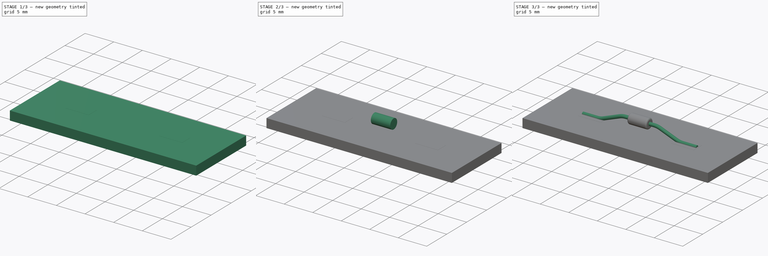
[diagram: build sequence overview — one tinted view per stage of 3, left to right]
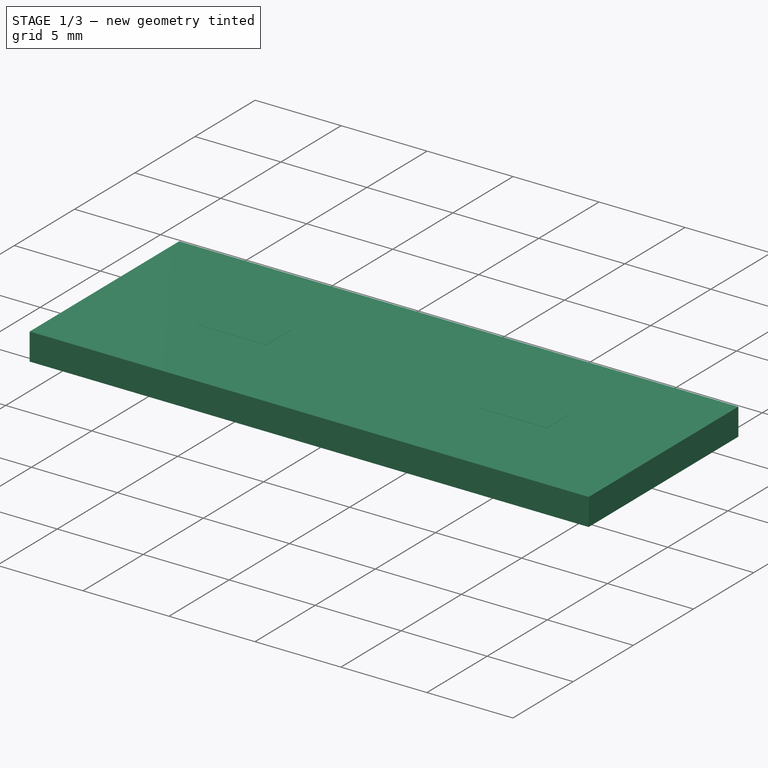
[diagram: stage 1 of 3 — iso view after this stage's code; geometry added in this stage tinted green]
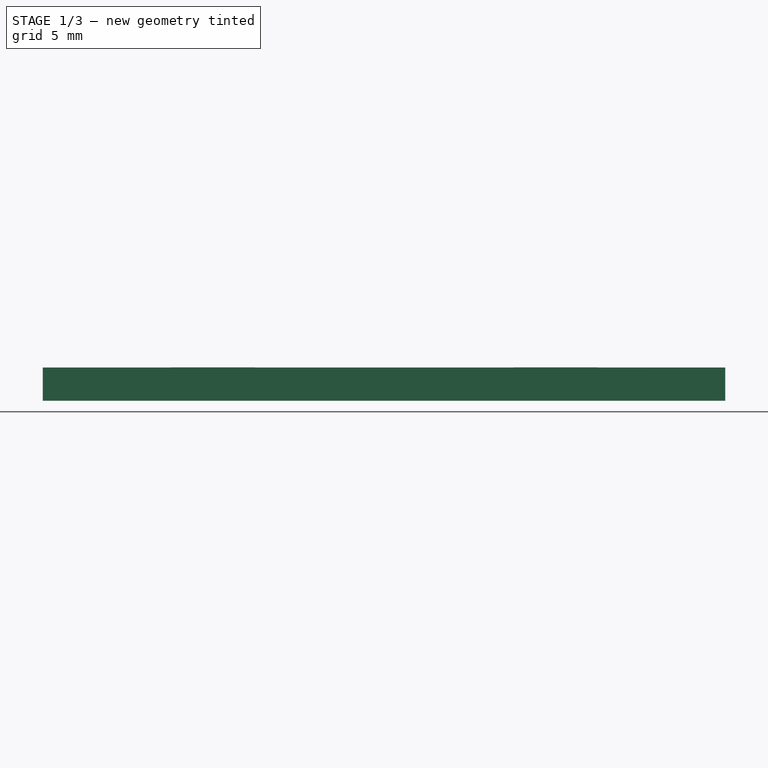
[diagram: stage 1 of 3 — front view after this stage's code; geometry added in this stage tinted green]
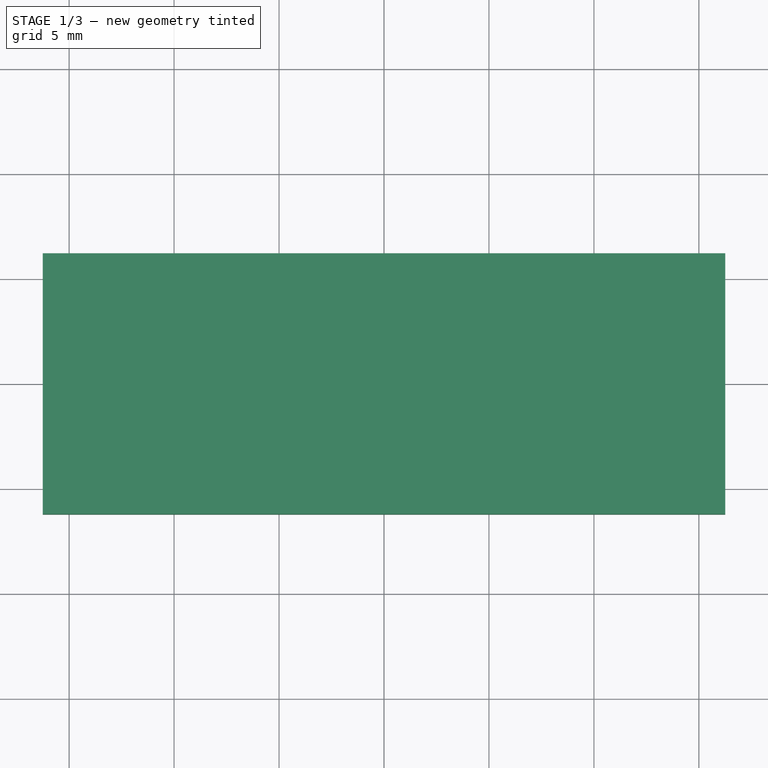
[diagram: stage 1 of 3 — top view after this stage's code; geometry added in this stage tinted green]
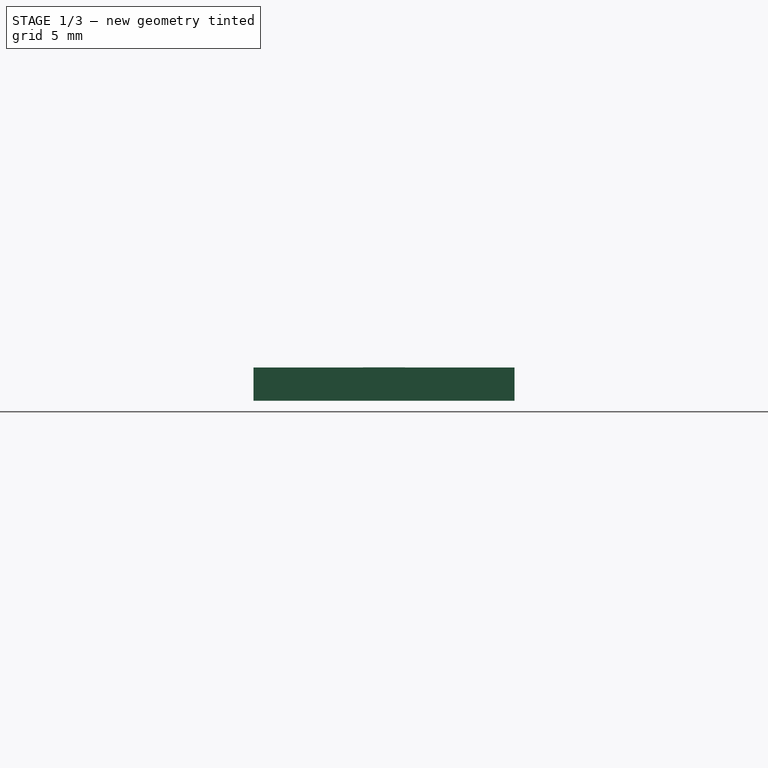
[diagram: stage 1 of 3 — right view after this stage's code; geometry added in this stage tinted green]
FCSTD DOCUMENT  (FreeCAD 0.17R10600 (Git))
Label: Diode_Helgoman
License: All rights reserved
LicenseURL: http://en.wikipedia.org/wiki/All_rights_reserved
objects: Sketcher::SketchObject×4, Part::Feature×4, Part::FeaturePython×3, PartDesign::Body×2, App::DocumentObjectGroup×2, Part::Sweep×1, PartDesign::Pad×1, PartDesign::Fillet×1
note: 17 computed .brp shape members not serialized (recipe doc carries the construction recipe); baked Part::Feature solids carry a one-line shape summary decoded from their .brp

FEATURE [PartDesign::Body] Body001
  Group = -> [Sketch003,Pad,Fillet]
  Origin = -> Body001Origin
  Tip = -> Fillet
FEATURE [Part::FeaturePython] Filk_lines  label="FrontSilk"  # a2plus imported part (geometry in sourceFile) (typed FeaturePython)
  fixedPosition = true
FEATURE [Part::FeaturePython] TopPads  # a2plus imported part (geometry in sourceFile) (typed FeaturePython)
  fixedPosition = true
FEATURE [Part::FeaturePython] newPCB  label="Pcb"  # a2plus imported part (geometry in sourceFile) (typed FeaturePython)
  fixedPosition = true
FEATURE [App::DocumentObjectGroup] DIODE_Helgoman_fp
  Group = -> [Filk_lines,TopPads,newPCB]
FEATURE [Part::Feature] FusionAxisZ1  label="Z"
  shape: bbox 0.8 x 0.8 x 14 mm, 8 faces (baked)
FEATURE [Part::Feature] FusionAxisY1  label="Y"
  Placement = pos=(0,0,0.05) rot=(-1,0,0;1.5708rad)
  shape: bbox 0.8 x 14 x 0.8 mm, 8 faces (baked)
FEATURE [Part::Feature] FusionAxisX1  label="X"
  Placement = pos=(0,-0.05,0) rot=(0,1,0;1.5708rad)
  shape: bbox 14 x 0.8 x 0.8 mm, 8 faces (baked)
FEATURE [App::DocumentObjectGroup] axis
  Group = -> [FusionAxisZ1,FusionAxisY1,FusionAxisX1]
FEATURE [Part::Feature] Shape  label="Diode_Helgoman"
  shape: bbox 20 x 1.894 x 2.804 mm, 17 faces (baked)
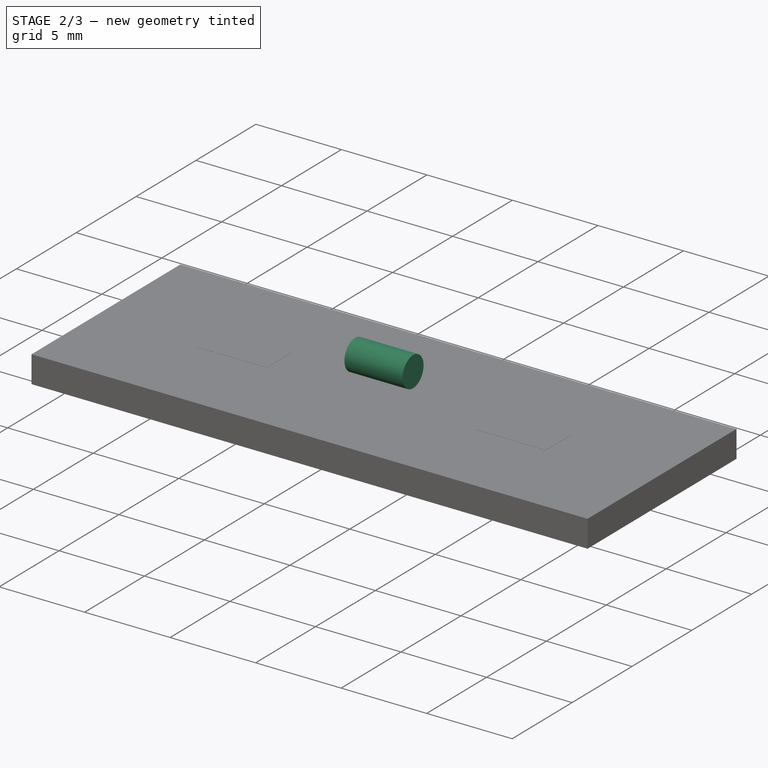
[diagram: stage 2 of 3 — iso view after this stage's code; geometry added in this stage tinted green]
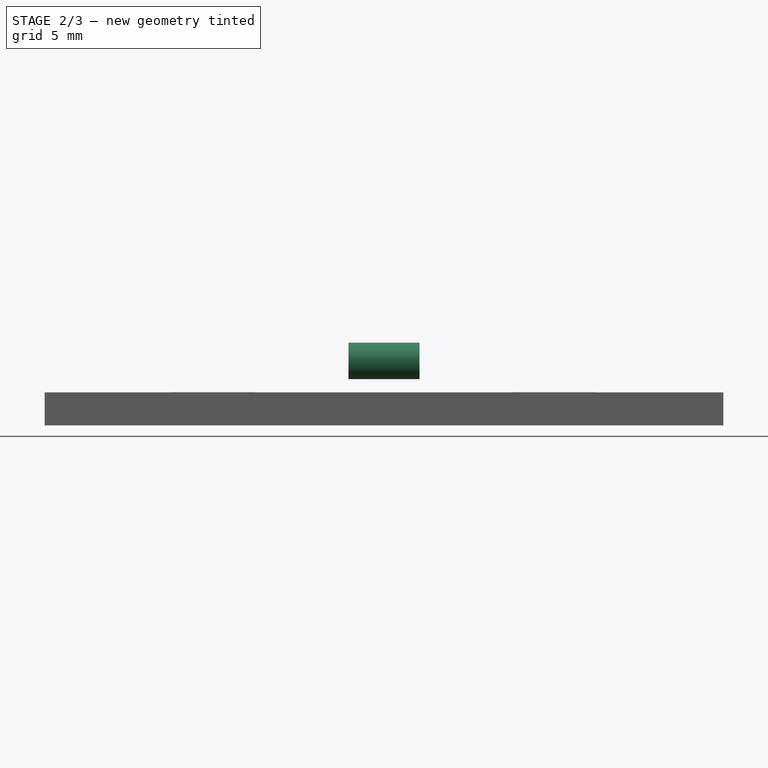
[diagram: stage 2 of 3 — front view after this stage's code; geometry added in this stage tinted green]
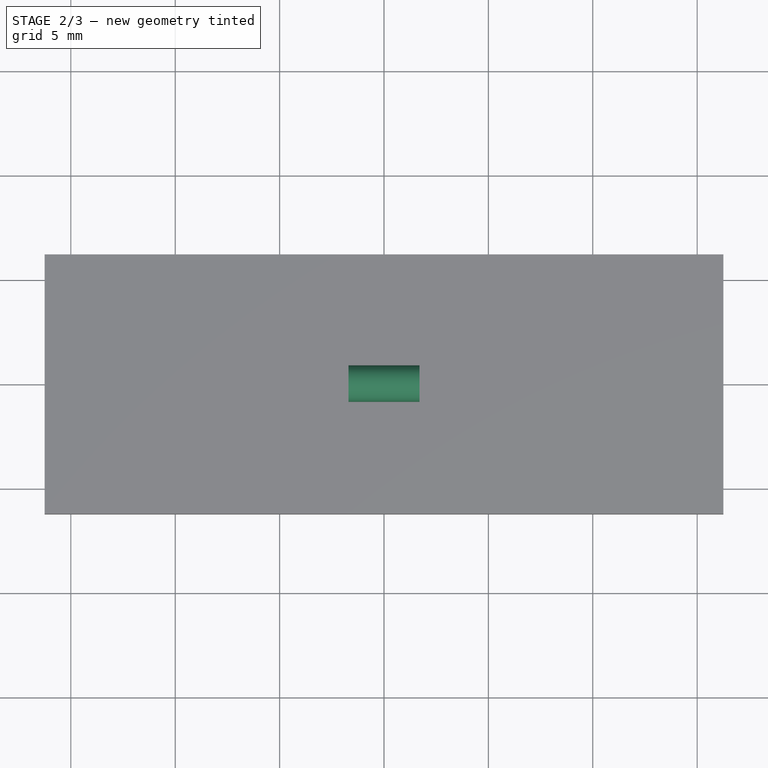
[diagram: stage 2 of 3 — top view after this stage's code; geometry added in this stage tinted green]
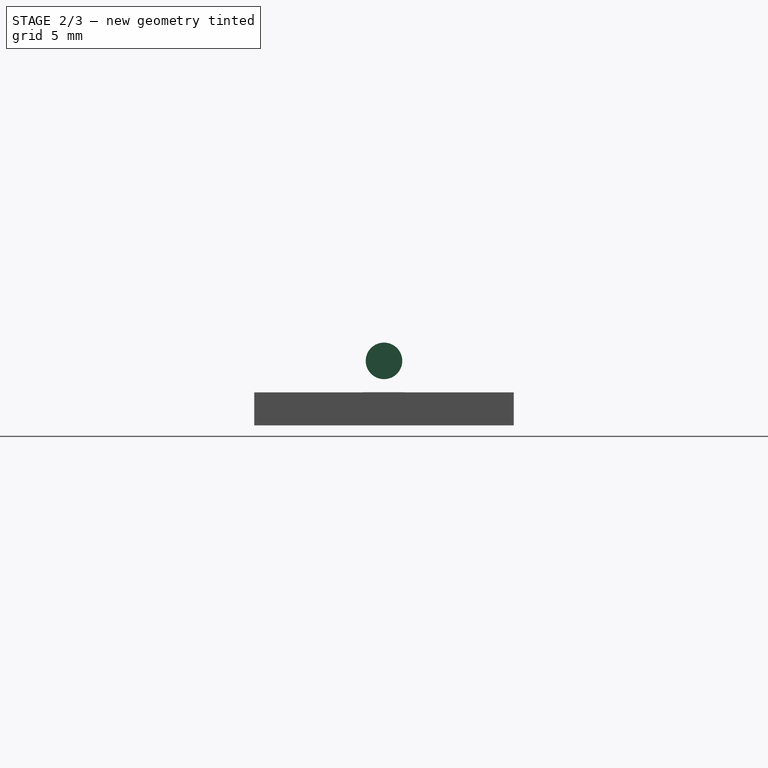
[diagram: stage 2 of 3 — right view after this stage's code; geometry added in this stage tinted green]
FEATURE [Sketcher::SketchObject] Sketch003
  ExternalGeometry = -> [Sketch]
  MapMode = 5
  Placement = pos=(0,0,0) rot=(0.57735,0.57735,0.57735;2.0944rad)
  Support = -> [YZ_Plane001]
  sketch-geometry (1):
    g0: Circle CenterX=0 CenterY=1.5 CenterZ=0 NormalX=0 NormalY=0 NormalZ=1 Radius=0.875
  constraints (2):
    c: Coincident(g0,g-3)
    c: Radius(g0) = 0.875
FEATURE [PartDesign::Pad] Pad
  Length = 3.4
  Length2 = 100
  Midplane = true
  Placement = pos=(0,0,0) rot=(0.57735,0.57735,0.57735;2.0944rad)
  Profile = -> Sketch003
  Type = 0
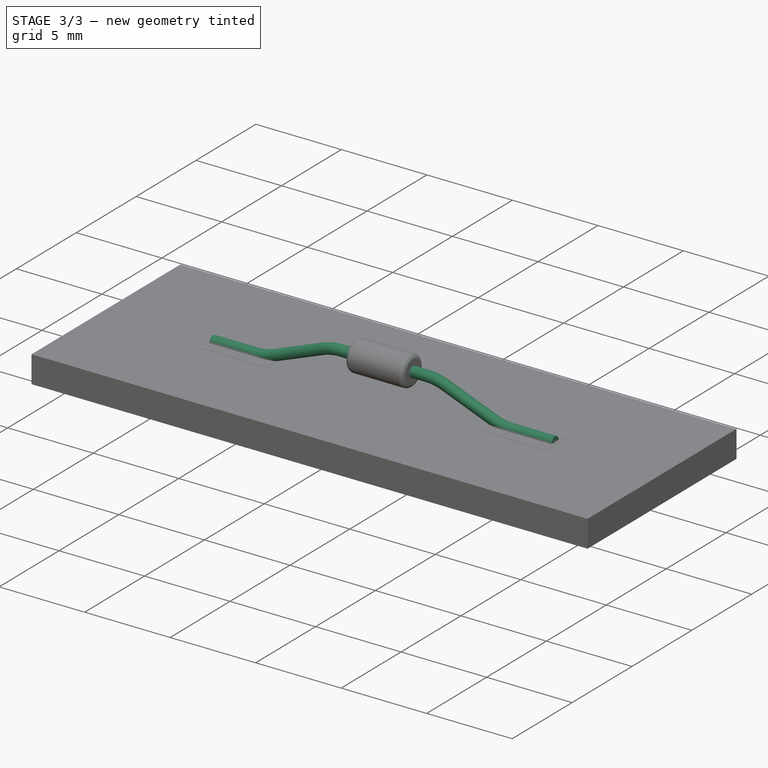
[diagram: stage 3 of 3 — iso view after this stage's code; geometry added in this stage tinted green]
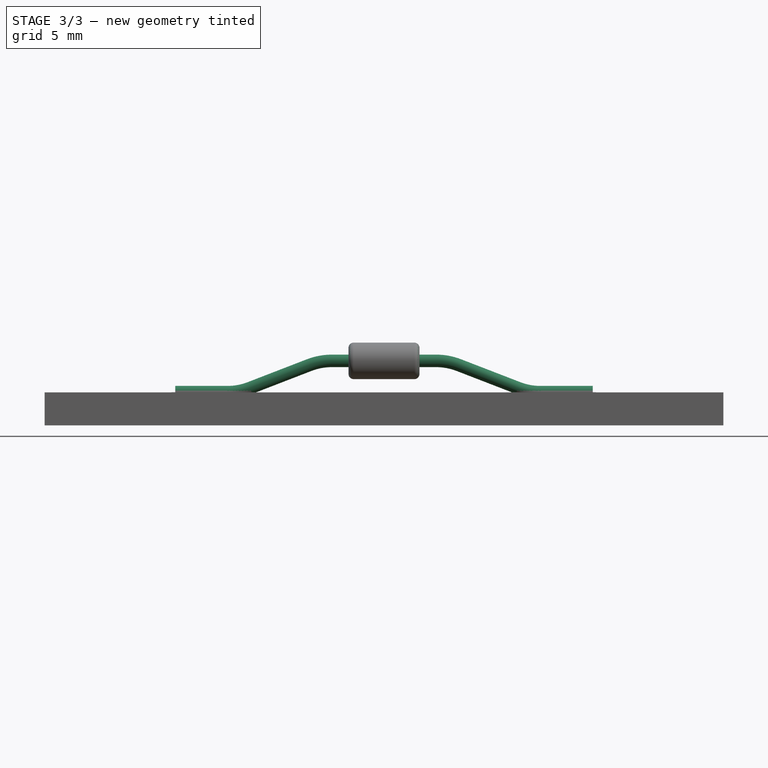
[diagram: stage 3 of 3 — front view after this stage's code; geometry added in this stage tinted green]
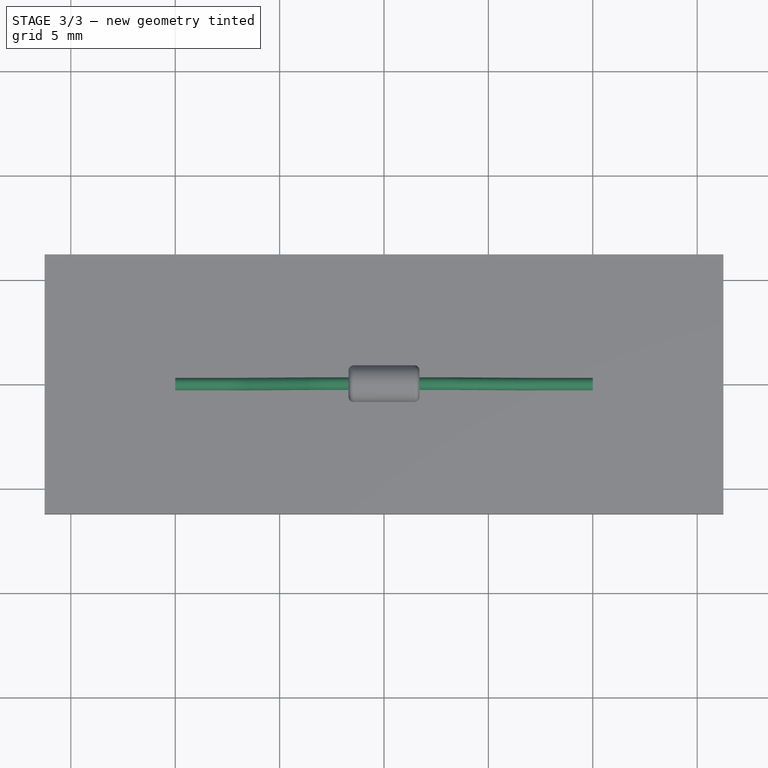
[diagram: stage 3 of 3 — top view after this stage's code; geometry added in this stage tinted green]
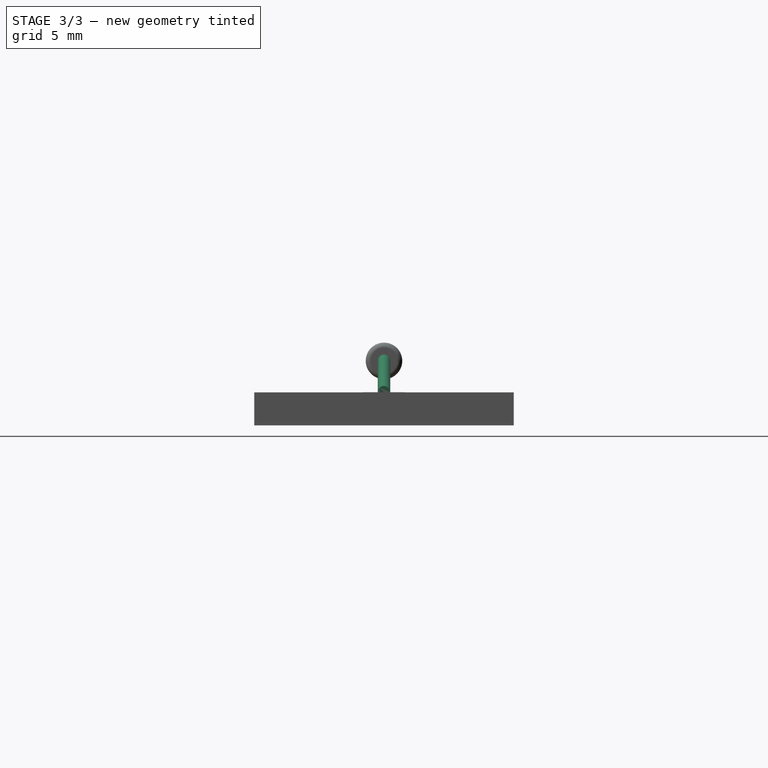
[diagram: stage 3 of 3 — right view after this stage's code; geometry added in this stage tinted green]
FEATURE [Sketcher::SketchObject] Sketch
  MapMode = 5
  Placement = pos=(0,0,0) rot=(1,0,0;1.5708rad)
  Support = -> [XZ_Plane]
  sketch-geometry (9):
    g0: LineSegment StartX=-10 StartY=0 StartZ=0 EndX=-7.5 EndY=0 EndZ=0
    g1: LineSegment StartX=-6.41842 StartY=0.201752 StartZ=0 EndX=-3.58159 EndY=1.29824 EndZ=0
    g2: LineSegment StartX=-2.5 StartY=1.5 StartZ=0 EndX=2.5 EndY=1.5 EndZ=0
    g3: ArcOfCircle CenterX=-2.5 CenterY=-1.5 CenterZ=0 NormalX=0 NormalY=0 NormalZ=1 Radius=3 StartAngle=1.5708 EndAngle=1.93963
    g4: ArcOfCircle CenterX=-7.5 CenterY=3 CenterZ=0 NormalX=0 NormalY=0 NormalZ=1 Radius=3 StartAngle=4.71239 EndAngle=5.08122
    g5: ArcOfCircle CenterX=2.5 CenterY=-1.5 CenterZ=0 NormalX=0 NormalY=0 NormalZ=1 Radius=3 StartAngle=1.20196 EndAngle=1.5708
    g6: LineSegment StartX=3.58158 StartY=1.29825 StartZ=0 EndX=6.41842 EndY=0.201752 EndZ=0
    g7: LineSegment StartX=7.5 StartY=0 StartZ=0 EndX=10 EndY=0 EndZ=0
    g8: ArcOfCircle CenterX=7.5 CenterY=3 CenterZ=0 NormalX=0 NormalY=0 NormalZ=1 Radius=3 StartAngle=4.34356 EndAngle=4.71239
  constraints (21):
    c: Horizontal(g2)
    c: Tangent(g2,g3) = 1.5708
    c: DistanceX(g-2,g3) = -2.5
    c: Tangent(g0,g4) = -1.5708
    c: Tangent(g1,g4) = -1.5708
    c: DistanceX(g-2,g4) = -7.5
    c: Tangent(g0,g-1)
    c: Tangent(g2,g5) = 1.5708
    c: Tangent(g5,g6) = 1.5708
    c: Horizontal(g7)
    c: Symmetric(g3,g5,g-2)
    c: DistanceY(g-1,g2) = 1.5
    c: Tangent(g6,g8) = -1.5708
    c: Tangent(g7,g8) = -1.5708
    c: Symmetric(g8,g4,g-2)
    c: DistanceX(g-2,g0) = -10
    c: Symmetric(g0,g7,g-2)
    c: Radius(g8) = 3
    c: Coincident(g3,g1)
    c: Tangent(g1,g3)
    c: Radius(g3) = 3
FEATURE [Sketcher::SketchObject] Sketch001
  ExternalGeometry = -> [Sketch]
  MapMode = 5
  Placement = pos=(0,0,0) rot=(0.57735,0.57735,0.57735;2.0944rad)
  Support = -> [YZ_Plane]
  sketch-geometry (1):
    g0: Circle CenterX=0 CenterY=1.5 CenterZ=0 NormalX=0 NormalY=0 NormalZ=1 Radius=0.3
  constraints (2):
    c: Coincident(g0,g-3)
    c: Radius(g0) = 0.3
FEATURE [Sketcher::SketchObject] Sketch002
  MapMode = 5
  Placement = pos=(10,0,0) rot=(0.57735,0.57735,0.57735;2.0944rad)
  Support = -> [YZ_Plane]
  superPlacement = pos=(0,0,10) rot=(0,0,1;0rad)
  sketch-geometry (1):
    g0: Circle CenterX=0 CenterY=0 CenterZ=0 NormalX=0 NormalY=0 NormalZ=1 Radius=0.3
  constraints (2):
    c: Coincident(g0,g-1)
    c: Radius(g0) = 0.3
FEATURE [PartDesign::Body] Body
  Group = -> [Sketch,Sketch001,Sketch002]
  Origin = -> BodyOrigin
FEATURE [Part::Sweep] Sweep
  Frenet = false
  Sections = -> [Sketch002]
  Solid = true
  Spine = -> Sketch
  Transition = 1
FEATURE [PartDesign::Fillet] Fillet
  Base = -> Pad [Edge2,Edge3]
  BaseFeature = -> Pad
  Placement = pos=(0,0,0) rot=(0.57735,0.57735,0.57735;2.0944rad)
  Radius = 0.25
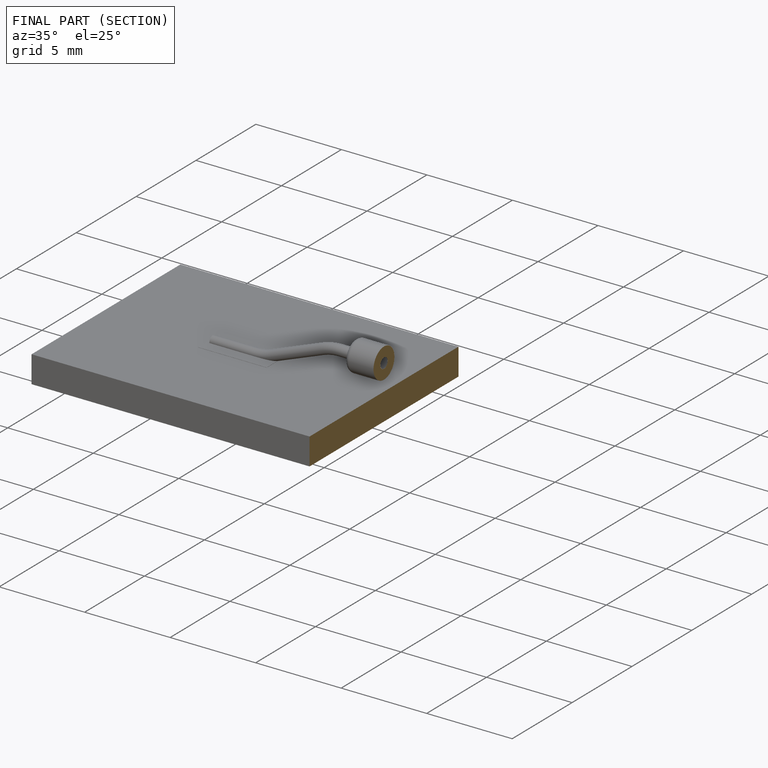
[diagram: finished part — half-section view (interior)]
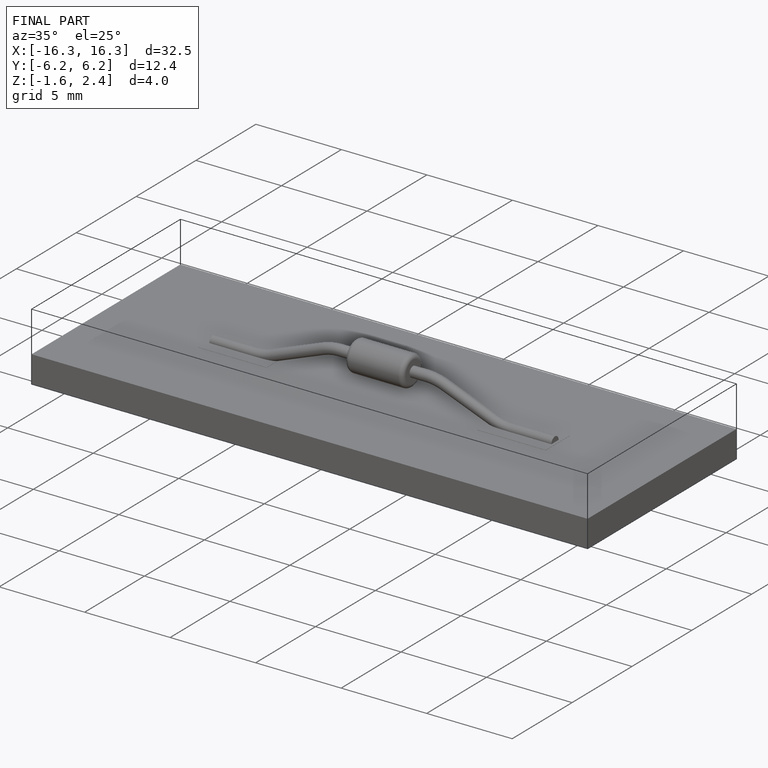
[diagram: finished part — iso view with bounding-box wireframe]
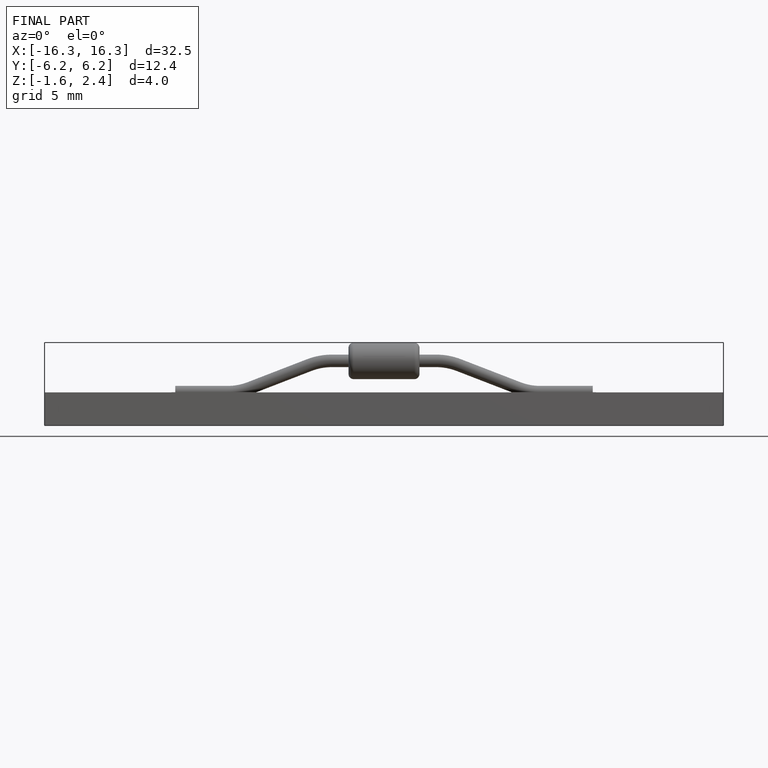
[diagram: finished part — front view with bounding-box wireframe]
